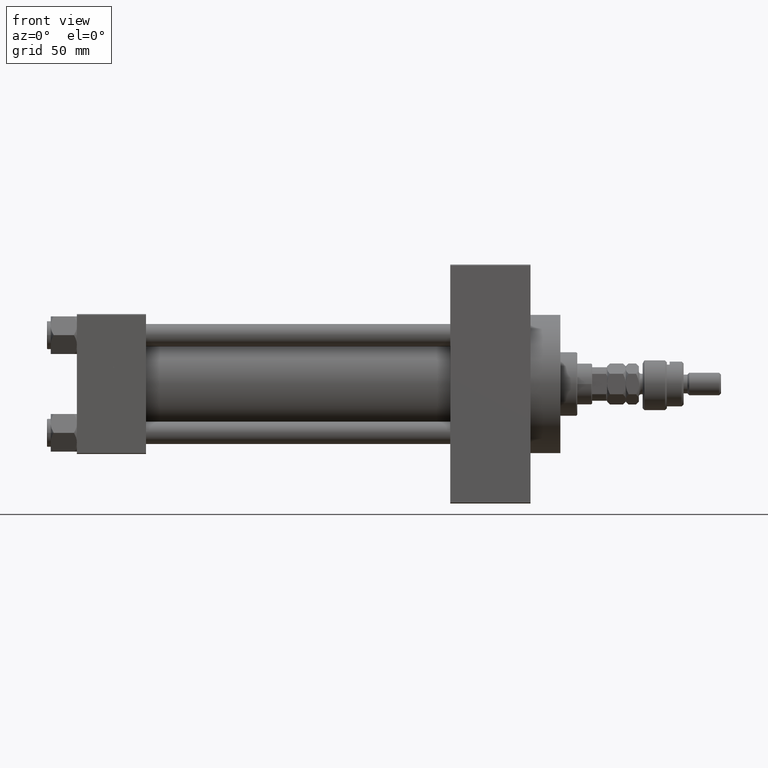
[diagram: clean part render]
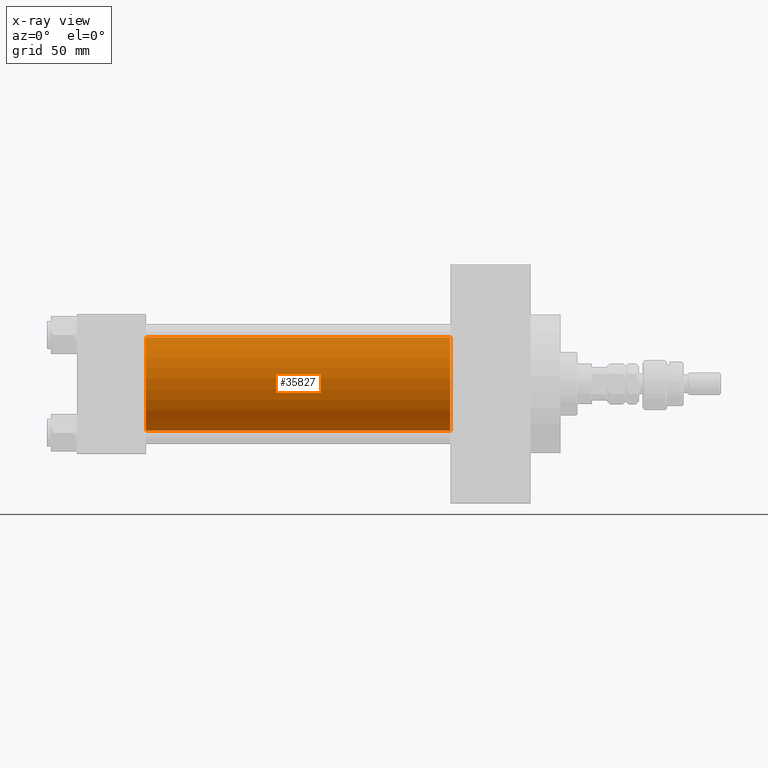
[diagram: x-ray — body ghosted, one internal face saturated and labeled with its STEP entity id]
A machine part, front view, then the same camera in x-ray: the body is ghosted and one INTERNAL B-rep face — a face not visible from any outside direction — is saturated and labeled: STEP entity #35827.
In plain terms, the highlighted cylindrical surface (partial cylindrical patch) has radius 25 mm, axis along (-1, -0, -0).
Its self-contained STEP definition (entity closure, byte-faithful):
#20 = DIRECTION ( 'NONE',  ( -1.000000000000000000, -0.000000000000000000, -0.000000000000000000 ) ) ;
#605 = ORIENTED_EDGE ( 'NONE', *, *, #48561, .T. ) ;
#665 = ORIENTED_EDGE ( 'NONE', *, *, #25930, .T. ) ;
#969 = CIRCLE ( 'NONE', #37297, 25.00000000000000000 ) ;
#3000 = CARTESIAN_POINT ( 'NONE',  ( 200.0000000000000000, 4.595317839031724996E-16, -25.00000000000000000 ) ) ;
#5775 = CIRCLE ( 'NONE', #26176, 25.00000000000000000 ) ;
#9976 = VERTEX_POINT ( 'NONE', #12957 ) ;
#11813 = FACE_OUTER_BOUND ( 'NONE', #12903, .T. ) ;
#12903 = EDGE_LOOP ( 'NONE', ( #605, #665, #27034, #20824 ) ) ;
#12957 = CARTESIAN_POINT ( 'NONE',  ( 200.0000000000000000, -2.602085213965210642E-15, 25.00000000000000000 ) ) ;
#13445 = DIRECTION ( 'NONE',  ( -1.000000000000000000, -0.000000000000000000, -0.000000000000000000 ) ) ;
#13752 = VERTEX_POINT ( 'NONE', #31158 ) ;
#19039 = VECTOR ( 'NONE', #20, 1000.000000000000000 ) ;
#19076 = CARTESIAN_POINT ( 'NONE',  ( 200.0000000000000000, -2.602085213965210642E-15, 25.00000000000000000 ) ) ;
#20264 = CARTESIAN_POINT ( 'NONE',  ( 200.0000000000000000, -2.602085213965210642E-15, 0.000000000000000000 ) ) ;
#20824 = ORIENTED_EDGE ( 'NONE', *, *, #31330, .F. ) ;
#21117 = CARTESIAN_POINT ( 'NONE',  ( 37.00000000000000000, -2.602085213965210642E-15, 0.000000000000000000 ) ) ;
#23711 = DIRECTION ( 'NONE',  ( 1.000000000000000000, 0.000000000000000000, 0.000000000000000000 ) ) ;
#23974 = DIRECTION ( 'NONE',  ( 0.000000000000000000, 0.000000000000000000, -1.000000000000000000 ) ) ;
#23994 = CYLINDRICAL_SURFACE ( 'NONE', #37758, 25.00000000000000000 ) ;
#25930 = EDGE_CURVE ( 'NONE', #36856, #37949, #37252, .T. ) ;
#26176 = AXIS2_PLACEMENT_3D ( 'NONE', #21117, #49657, #45955 ) ;
#27034 = ORIENTED_EDGE ( 'NONE', *, *, #41570, .F. ) ;
#28225 = DIRECTION ( 'NONE',  ( 0.000000000000000000, 0.000000000000000000, 1.000000000000000000 ) ) ;
#31158 = CARTESIAN_POINT ( 'NONE',  ( 37.00000000000000000, -2.602085213965210642E-15, 25.00000000000000000 ) ) ;
#31330 = EDGE_CURVE ( 'NONE', #9976, #13752, #39432, .T. ) ;
#32198 = CARTESIAN_POINT ( 'NONE',  ( 200.0000000000000000, -2.602085213965210642E-15, 0.000000000000000000 ) ) ;
#35827 = ADVANCED_FACE ( 'NONE', ( #11813 ), #23994, .F. ) ;
#36856 = VERTEX_POINT ( 'NONE', #3000 ) ;
#37252 = LINE ( 'NONE', #49665, #40788 ) ;
#37262 = CARTESIAN_POINT ( 'NONE',  ( 37.00000000000000000, 4.595317839031724996E-16, -25.00000000000000000 ) ) ;
#37297 = AXIS2_PLACEMENT_3D ( 'NONE', #20264, #23711, #23974 ) ;
#37758 = AXIS2_PLACEMENT_3D ( 'NONE', #32198, #48302, #28225 ) ;
#37949 = VERTEX_POINT ( 'NONE', #37262 ) ;
#39432 = LINE ( 'NONE', #19076, #19039 ) ;
#40788 = VECTOR ( 'NONE', #13445, 1000.000000000000000 ) ;
#41570 = EDGE_CURVE ( 'NONE', #13752, #37949, #5775, .T. ) ;
#45955 = DIRECTION ( 'NONE',  ( 0.000000000000000000, 0.000000000000000000, -1.000000000000000000 ) ) ;
#48302 = DIRECTION ( 'NONE',  ( -1.000000000000000000, -0.000000000000000000, -0.000000000000000000 ) ) ;
#48561 = EDGE_CURVE ( 'NONE', #9976, #36856, #969, .T. ) ;
#49657 = DIRECTION ( 'NONE',  ( 1.000000000000000000, 0.000000000000000000, 0.000000000000000000 ) ) ;
#49665 = CARTESIAN_POINT ( 'NONE',  ( 200.0000000000000000, 4.595317839031724996E-16, -25.00000000000000000 ) ) ;